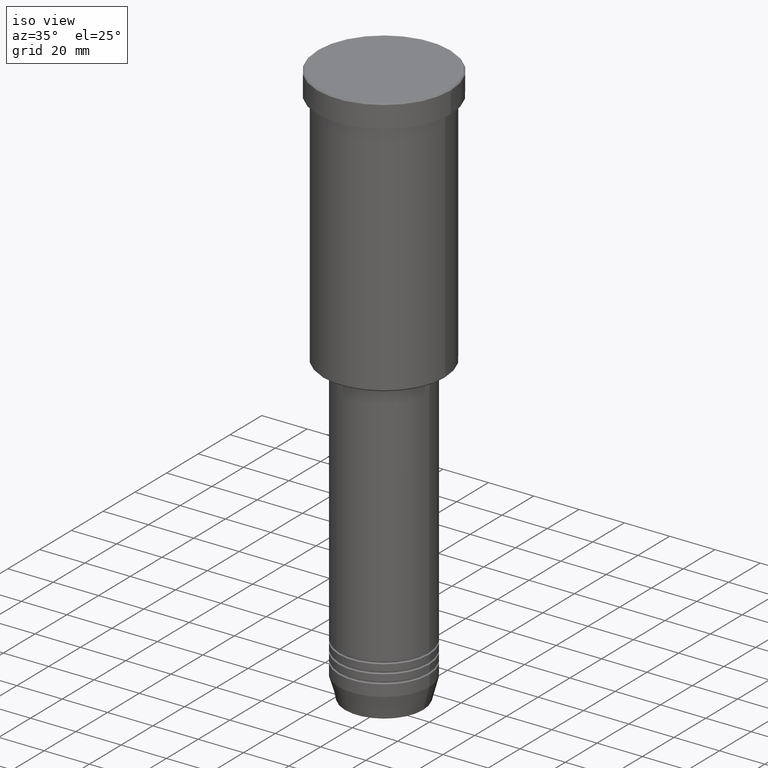
[diagram: clean part render]
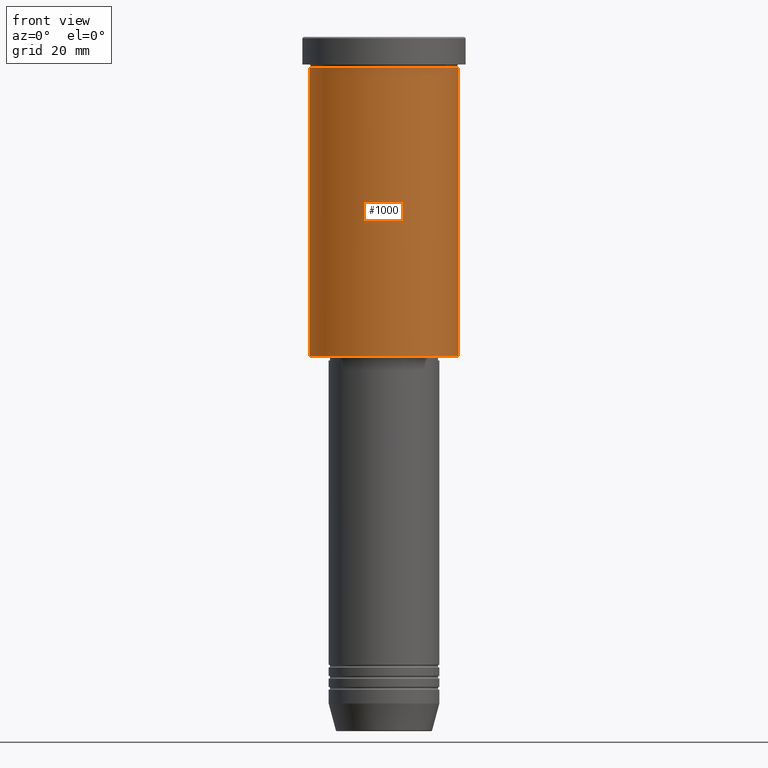
[diagram: tour spotlight — one face highlighted and labeled with its STEP entity id]
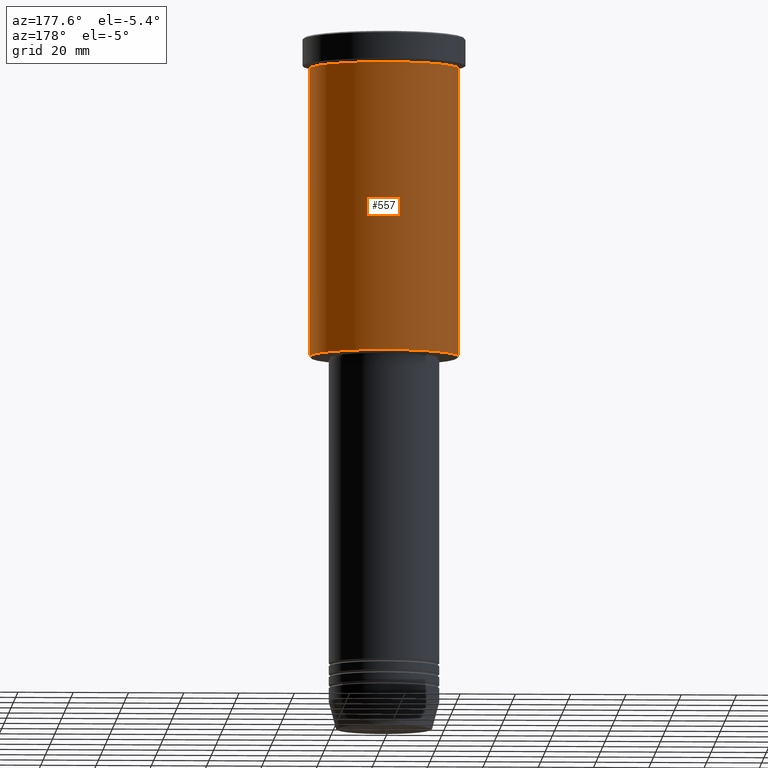
[diagram: tour spotlight — one face highlighted and labeled with its STEP entity id]
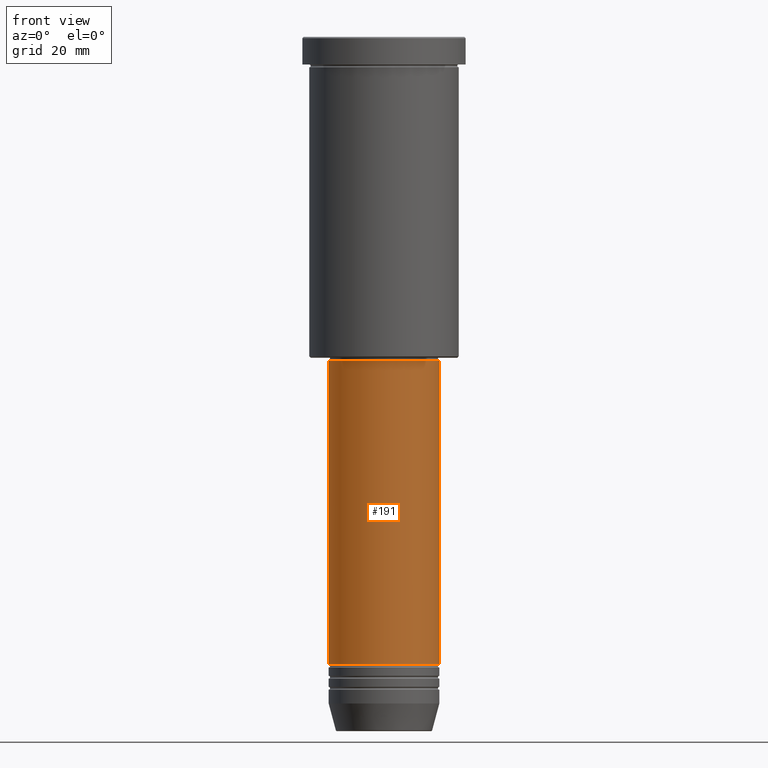
[diagram: tour spotlight — one face highlighted and labeled with its STEP entity id]
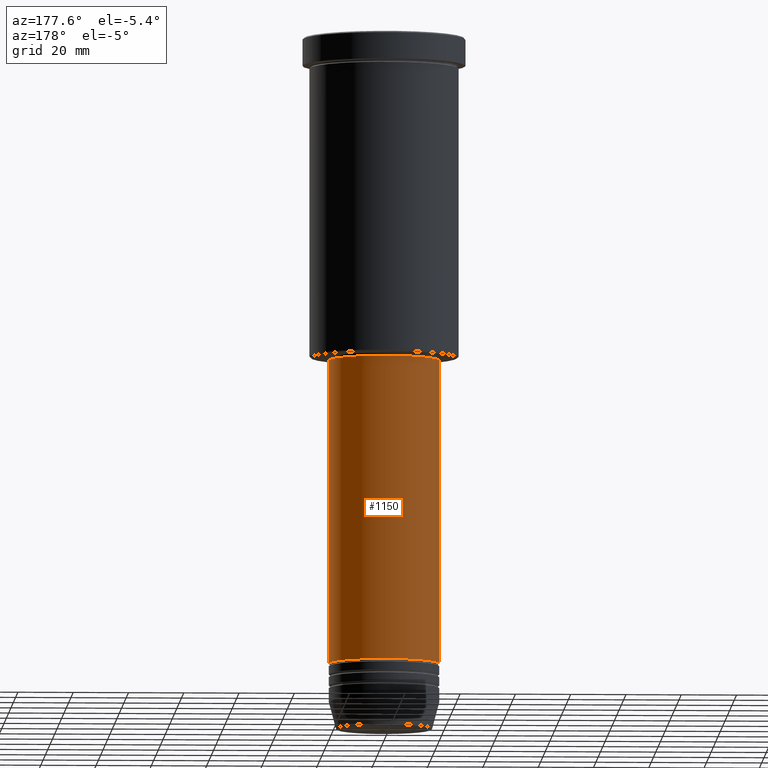
[diagram: tour spotlight — one face highlighted and labeled with its STEP entity id]
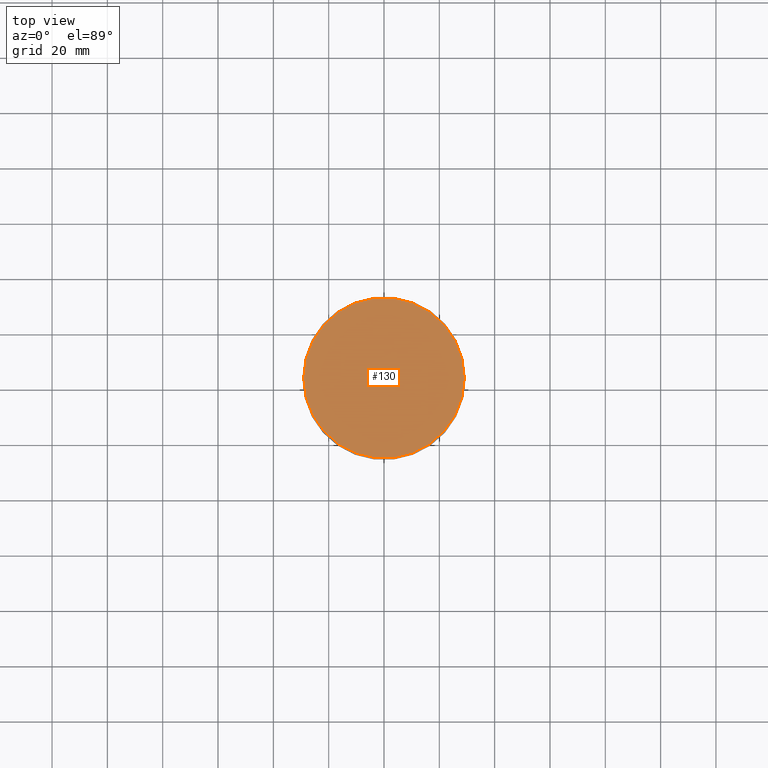
[diagram: tour spotlight — one face highlighted and labeled with its STEP entity id]
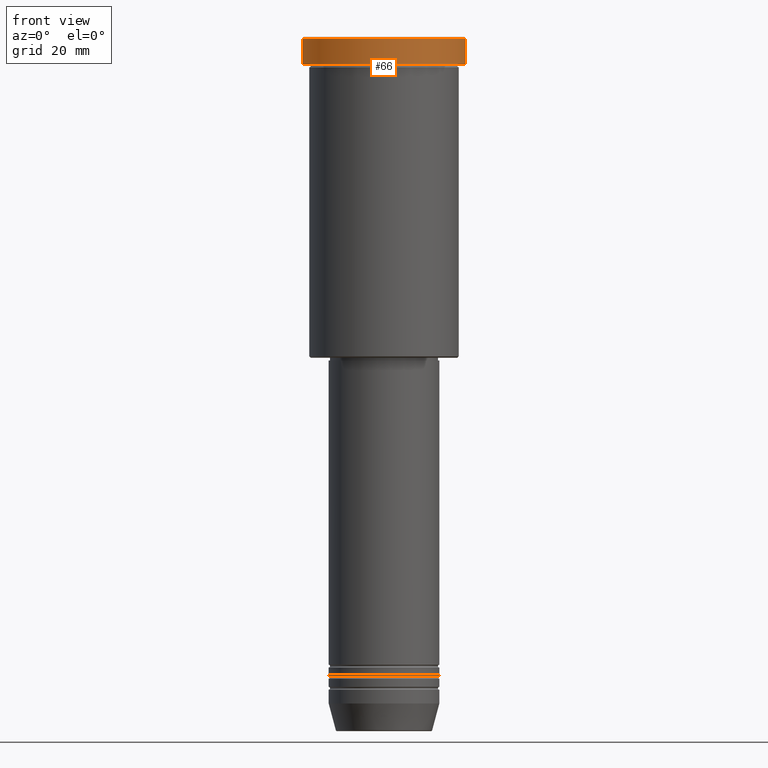
[diagram: tour spotlight — one face highlighted and labeled with its STEP entity id]
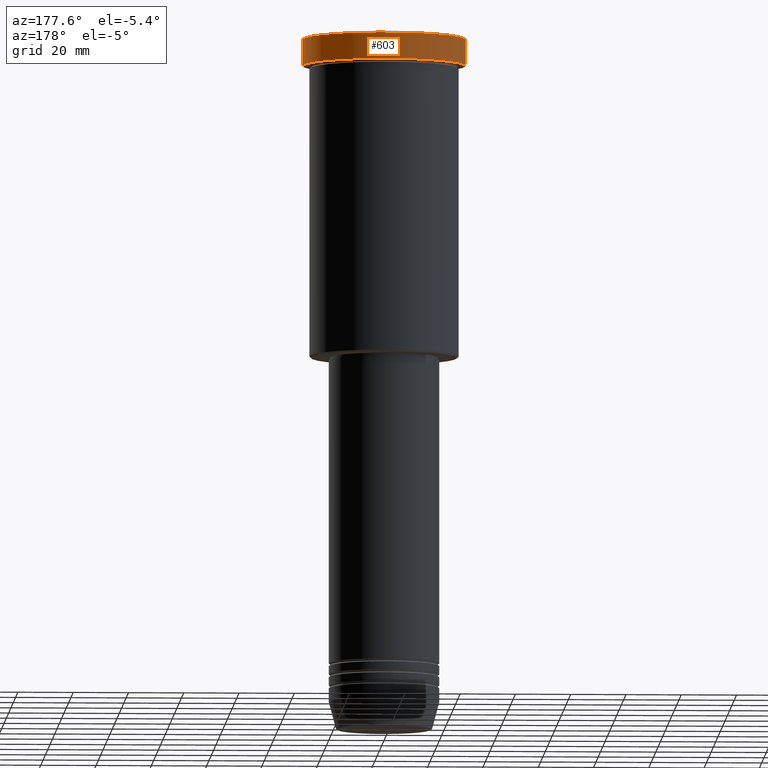
[diagram: tour spotlight — one face highlighted and labeled with its STEP entity id]
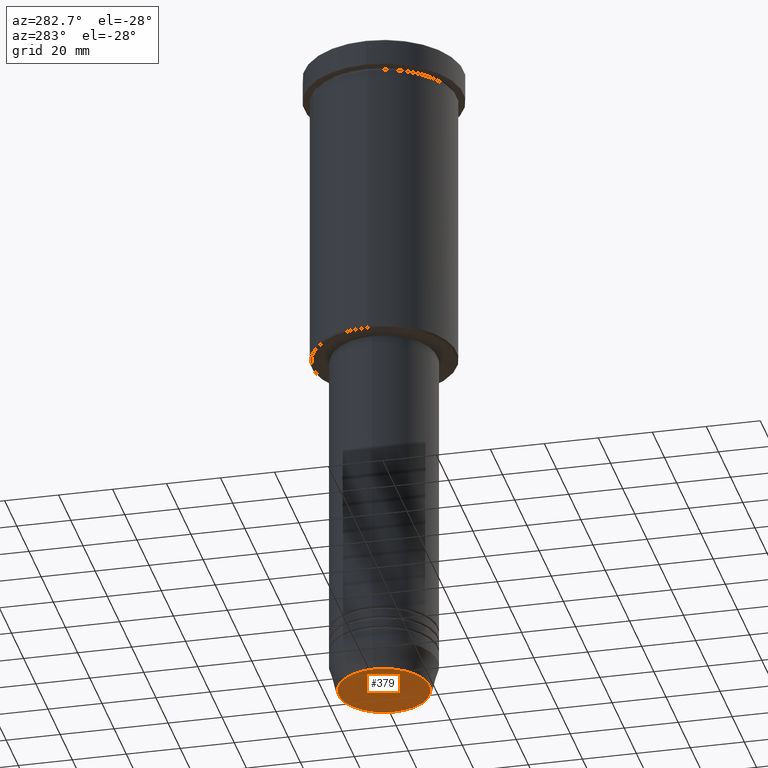
[diagram: tour spotlight — one face highlighted and labeled with its STEP entity id]
A machine part: a face-by-face anatomy tour. The part has 43 B-rep faces; the first image is the clean iso view, then the 8 largest visible faces are spotlighted one at a time (largest first), each with its STEP entity span.

Face 1 — front view, entity #1000. In plain terms, the highlighted cylindrical surface (partial cylindrical patch) has radius 27 mm, axis along (-0, -0, 1).
Definition (entity closure, byte-faithful):
#41 = CARTESIAN_POINT ( 'NONE',  ( 27.00000000000000355, 0.000000000000000000, 0.000000000000000000 ) ) ;
#71 = CIRCLE ( 'NONE', #127, 27.00000000000000355 ) ;
#94 = DIRECTION ( 'NONE',  ( -0.000000000000000000, -0.000000000000000000, 1.000000000000000000 ) ) ;
#127 = AXIS2_PLACEMENT_3D ( 'NONE', #998, #1112, #394 ) ;
#139 = VERTEX_POINT ( 'NONE', #487 ) ;
#140 = LINE ( 'NONE', #686, #901 ) ;
#162 = CYLINDRICAL_SURFACE ( 'NONE', #556, 27.00000000000000355 ) ;
#184 = ORIENTED_EDGE ( 'NONE', *, *, #399, .F. ) ;
#216 = AXIS2_PLACEMENT_3D ( 'NONE', #789, #1062, #865 ) ;
#238 = CARTESIAN_POINT ( 'NONE',  ( -27.00000000000000355, 3.306546357697854128E-15, -10.99999999999999289 ) ) ;
#272 = DIRECTION ( 'NONE',  ( 1.000000000000000000, 0.000000000000000000, 0.000000000000000000 ) ) ;
#310 = VERTEX_POINT ( 'NONE', #1050 ) ;
#315 = VECTOR ( 'NONE', #333, 1000.000000000000000 ) ;
#333 = DIRECTION ( 'NONE',  ( -0.000000000000000000, -0.000000000000000000, 1.000000000000000000 ) ) ;
#359 = FACE_OUTER_BOUND ( 'NONE', #1046, .T. ) ;
#365 = EDGE_CURVE ( 'NONE', #541, #310, #856, .T. ) ;
#394 = DIRECTION ( 'NONE',  ( -1.000000000000000000, 0.000000000000000000, 0.000000000000000000 ) ) ;
#399 = EDGE_CURVE ( 'NONE', #1183, #310, #955, .T. ) ;
#487 = CARTESIAN_POINT ( 'NONE',  ( -27.00000000000000355, 3.306546357697854128E-15, -115.4999999999999289 ) ) ;
#541 = VERTEX_POINT ( 'NONE', #909 ) ;
#556 = AXIS2_PLACEMENT_3D ( 'NONE', #902, #94, #272 ) ;
#686 = CARTESIAN_POINT ( 'NONE',  ( -27.00000000000000355, 3.306546357697854128E-15, 0.000000000000000000 ) ) ;
#789 = CARTESIAN_POINT ( 'NONE',  ( 0.000000000000000000, 0.000000000000000000, -10.99999999999999289 ) ) ;
#818 = EDGE_CURVE ( 'NONE', #139, #1183, #140, .T. ) ;
#856 = LINE ( 'NONE', #41, #315 ) ;
#865 = DIRECTION ( 'NONE',  ( 1.000000000000000000, 0.000000000000000000, 0.000000000000000000 ) ) ;
#901 = VECTOR ( 'NONE', #968, 1000.000000000000000 ) ;
#902 = CARTESIAN_POINT ( 'NONE',  ( 0.000000000000000000, 0.000000000000000000, 0.000000000000000000 ) ) ;
#909 = CARTESIAN_POINT ( 'NONE',  ( 27.00000000000000355, 0.000000000000000000, -115.4999999999999289 ) ) ;
#929 = ORIENTED_EDGE ( 'NONE', *, *, #1141, .T. ) ;
#937 = ORIENTED_EDGE ( 'NONE', *, *, #365, .T. ) ;
#955 = CIRCLE ( 'NONE', #216, 27.00000000000000355 ) ;
#956 = ORIENTED_EDGE ( 'NONE', *, *, #818, .F. ) ;
#968 = DIRECTION ( 'NONE',  ( -0.000000000000000000, -0.000000000000000000, 1.000000000000000000 ) ) ;
#998 = CARTESIAN_POINT ( 'NONE',  ( 0.000000000000000000, 0.000000000000000000, -115.4999999999999289 ) ) ;
#1000 = ADVANCED_FACE ( 'NONE', ( #359 ), #162, .T. ) ;
#1046 = EDGE_LOOP ( 'NONE', ( #956, #929, #937, #184 ) ) ;
#1050 = CARTESIAN_POINT ( 'NONE',  ( 27.00000000000000355, 0.000000000000000000, -10.99999999999999289 ) ) ;
#1062 = DIRECTION ( 'NONE',  ( -0.000000000000000000, -0.000000000000000000, 1.000000000000000000 ) ) ;
#1112 = DIRECTION ( 'NONE',  ( -0.000000000000000000, -0.000000000000000000, 1.000000000000000000 ) ) ;
#1141 = EDGE_CURVE ( 'NONE', #139, #541, #71, .T. ) ;
#1183 = VERTEX_POINT ( 'NONE', #238 ) ;

Face 2 — auxiliary view, entity #557. In plain terms, the highlighted cylindrical surface (partial cylindrical patch) has radius 27 mm, axis along (-0, -0, 1).
Definition (entity closure, byte-faithful):
#7 = CIRCLE ( 'NONE', #339, 27.00000000000000355 ) ;
#41 = CARTESIAN_POINT ( 'NONE',  ( 27.00000000000000355, 0.000000000000000000, 0.000000000000000000 ) ) ;
#48 = ORIENTED_EDGE ( 'NONE', *, *, #1070, .T. ) ;
#76 = DIRECTION ( 'NONE',  ( -0.000000000000000000, -0.000000000000000000, 1.000000000000000000 ) ) ;
#111 = DIRECTION ( 'NONE',  ( 1.000000000000000000, 0.000000000000000000, 0.000000000000000000 ) ) ;
#139 = VERTEX_POINT ( 'NONE', #487 ) ;
#140 = LINE ( 'NONE', #686, #901 ) ;
#238 = CARTESIAN_POINT ( 'NONE',  ( -27.00000000000000355, 3.306546357697854128E-15, -10.99999999999999289 ) ) ;
#310 = VERTEX_POINT ( 'NONE', #1050 ) ;
#315 = VECTOR ( 'NONE', #333, 1000.000000000000000 ) ;
#333 = DIRECTION ( 'NONE',  ( -0.000000000000000000, -0.000000000000000000, 1.000000000000000000 ) ) ;
#339 = AXIS2_PLACEMENT_3D ( 'NONE', #560, #1008, #1094 ) ;
#365 = EDGE_CURVE ( 'NONE', #541, #310, #856, .T. ) ;
#439 = ORIENTED_EDGE ( 'NONE', *, *, #1162, .F. ) ;
#487 = CARTESIAN_POINT ( 'NONE',  ( -27.00000000000000355, 3.306546357697854128E-15, -115.4999999999999289 ) ) ;
#529 = FACE_OUTER_BOUND ( 'NONE', #1179, .T. ) ;
#541 = VERTEX_POINT ( 'NONE', #909 ) ;
#557 = ADVANCED_FACE ( 'NONE', ( #529 ), #808, .T. ) ;
#560 = CARTESIAN_POINT ( 'NONE',  ( 0.000000000000000000, 0.000000000000000000, -115.4999999999999289 ) ) ;
#623 = CIRCLE ( 'NONE', #915, 27.00000000000000355 ) ;
#649 = ORIENTED_EDGE ( 'NONE', *, *, #365, .F. ) ;
#650 = DIRECTION ( 'NONE',  ( -0.000000000000000000, -0.000000000000000000, 1.000000000000000000 ) ) ;
#686 = CARTESIAN_POINT ( 'NONE',  ( -27.00000000000000355, 3.306546357697854128E-15, 0.000000000000000000 ) ) ;
#691 = DIRECTION ( 'NONE',  ( 1.000000000000000000, 0.000000000000000000, 0.000000000000000000 ) ) ;
#710 = CARTESIAN_POINT ( 'NONE',  ( 0.000000000000000000, 0.000000000000000000, 0.000000000000000000 ) ) ;
#808 = CYLINDRICAL_SURFACE ( 'NONE', #1171, 27.00000000000000355 ) ;
#818 = EDGE_CURVE ( 'NONE', #139, #1183, #140, .T. ) ;
#856 = LINE ( 'NONE', #41, #315 ) ;
#901 = VECTOR ( 'NONE', #968, 1000.000000000000000 ) ;
#909 = CARTESIAN_POINT ( 'NONE',  ( 27.00000000000000355, 0.000000000000000000, -115.4999999999999289 ) ) ;
#915 = AXIS2_PLACEMENT_3D ( 'NONE', #920, #650, #111 ) ;
#920 = CARTESIAN_POINT ( 'NONE',  ( 0.000000000000000000, 0.000000000000000000, -10.99999999999999289 ) ) ;
#968 = DIRECTION ( 'NONE',  ( -0.000000000000000000, -0.000000000000000000, 1.000000000000000000 ) ) ;
#1008 = DIRECTION ( 'NONE',  ( -0.000000000000000000, -0.000000000000000000, 1.000000000000000000 ) ) ;
#1050 = CARTESIAN_POINT ( 'NONE',  ( 27.00000000000000355, 0.000000000000000000, -10.99999999999999289 ) ) ;
#1070 = EDGE_CURVE ( 'NONE', #541, #139, #7, .T. ) ;
#1075 = ORIENTED_EDGE ( 'NONE', *, *, #818, .T. ) ;
#1094 = DIRECTION ( 'NONE',  ( -1.000000000000000000, 0.000000000000000000, 0.000000000000000000 ) ) ;
#1162 = EDGE_CURVE ( 'NONE', #310, #1183, #623, .T. ) ;
#1171 = AXIS2_PLACEMENT_3D ( 'NONE', #710, #76, #691 ) ;
#1179 = EDGE_LOOP ( 'NONE', ( #48, #1075, #439, #649 ) ) ;
#1183 = VERTEX_POINT ( 'NONE', #238 ) ;

Face 3 — front view, entity #191. In plain terms, the highlighted cylindrical surface (partial cylindrical patch) has radius 20 mm, axis along (-0, -0, 1).
Definition (entity closure, byte-faithful):
#13 = CARTESIAN_POINT ( 'NONE',  ( 19.99999999999999645, 0.000000000000000000, -117.0000000000000142 ) ) ;
#22 = DIRECTION ( 'NONE',  ( 1.000000000000000000, 0.000000000000000000, 0.000000000000000000 ) ) ;
#29 = CYLINDRICAL_SURFACE ( 'NONE', #387, 19.99999999999999645 ) ;
#50 = CARTESIAN_POINT ( 'NONE',  ( 20.00000000000000000, 0.000000000000000000, -226.9999999999998863 ) ) ;
#92 = ORIENTED_EDGE ( 'NONE', *, *, #626, .F. ) ;
#146 = CIRCLE ( 'NONE', #1036, 20.00000000000000000 ) ;
#147 = ORIENTED_EDGE ( 'NONE', *, *, #941, .F. ) ;
#154 = VERTEX_POINT ( 'NONE', #13 ) ;
#169 = CARTESIAN_POINT ( 'NONE',  ( 0.000000000000000000, 0.000000000000000000, -117.0000000000000142 ) ) ;
#191 = ADVANCED_FACE ( 'NONE', ( #558 ), #29, .T. ) ;
#208 = CARTESIAN_POINT ( 'NONE',  ( -19.99999999999999645, 2.449293598294706119E-15, 0.000000000000000000 ) ) ;
#248 = DIRECTION ( 'NONE',  ( 1.000000000000000000, 0.000000000000000000, 0.000000000000000000 ) ) ;
#260 = VERTEX_POINT ( 'NONE', #50 ) ;
#265 = ORIENTED_EDGE ( 'NONE', *, *, #1159, .T. ) ;
#286 = DIRECTION ( 'NONE',  ( -0.000000000000000000, -0.000000000000000000, 1.000000000000000000 ) ) ;
#294 = VECTOR ( 'NONE', #548, 1000.000000000000000 ) ;
#342 = EDGE_LOOP ( 'NONE', ( #92, #567, #265, #147 ) ) ;
#354 = CIRCLE ( 'NONE', #392, 19.99999999999999645 ) ;
#363 = CARTESIAN_POINT ( 'NONE',  ( 0.000000000000000000, 0.000000000000000000, -226.9999999999998863 ) ) ;
#387 = AXIS2_PLACEMENT_3D ( 'NONE', #391, #844, #22 ) ;
#391 = CARTESIAN_POINT ( 'NONE',  ( 0.000000000000000000, 0.000000000000000000, 0.000000000000000000 ) ) ;
#392 = AXIS2_PLACEMENT_3D ( 'NONE', #169, #990, #248 ) ;
#472 = LINE ( 'NONE', #1098, #1039 ) ;
#502 = VERTEX_POINT ( 'NONE', #715 ) ;
#548 = DIRECTION ( 'NONE',  ( -0.000000000000000000, -0.000000000000000000, 1.000000000000000000 ) ) ;
#558 = FACE_OUTER_BOUND ( 'NONE', #342, .T. ) ;
#567 = ORIENTED_EDGE ( 'NONE', *, *, #1020, .T. ) ;
#626 = EDGE_CURVE ( 'NONE', #502, #680, #930, .T. ) ;
#628 = DIRECTION ( 'NONE',  ( 1.000000000000000000, 0.000000000000000000, 0.000000000000000000 ) ) ;
#680 = VERTEX_POINT ( 'NONE', #1026 ) ;
#714 = DIRECTION ( 'NONE',  ( -0.000000000000000000, -0.000000000000000000, 1.000000000000000000 ) ) ;
#715 = CARTESIAN_POINT ( 'NONE',  ( -20.00000000000000000, 2.449293598294706513E-15, -226.9999999999998863 ) ) ;
#844 = DIRECTION ( 'NONE',  ( -0.000000000000000000, -0.000000000000000000, 1.000000000000000000 ) ) ;
#930 = LINE ( 'NONE', #208, #294 ) ;
#941 = EDGE_CURVE ( 'NONE', #680, #154, #354, .T. ) ;
#990 = DIRECTION ( 'NONE',  ( -0.000000000000000000, -0.000000000000000000, 1.000000000000000000 ) ) ;
#1020 = EDGE_CURVE ( 'NONE', #502, #260, #146, .T. ) ;
#1026 = CARTESIAN_POINT ( 'NONE',  ( -19.99999999999999645, 2.449293598294706119E-15, -117.0000000000000142 ) ) ;
#1036 = AXIS2_PLACEMENT_3D ( 'NONE', #363, #714, #628 ) ;
#1039 = VECTOR ( 'NONE', #286, 1000.000000000000000 ) ;
#1098 = CARTESIAN_POINT ( 'NONE',  ( 19.99999999999999645, 0.000000000000000000, 0.000000000000000000 ) ) ;
#1159 = EDGE_CURVE ( 'NONE', #260, #154, #472, .T. ) ;

Face 4 — auxiliary view, entity #1150. In plain terms, the highlighted cylindrical surface (partial cylindrical patch) has radius 20 mm, axis along (-0, -0, 1).
Definition (entity closure, byte-faithful):
#13 = CARTESIAN_POINT ( 'NONE',  ( 19.99999999999999645, 0.000000000000000000, -117.0000000000000142 ) ) ;
#20 = CARTESIAN_POINT ( 'NONE',  ( 0.000000000000000000, 0.000000000000000000, 0.000000000000000000 ) ) ;
#47 = AXIS2_PLACEMENT_3D ( 'NONE', #202, #282, #99 ) ;
#50 = CARTESIAN_POINT ( 'NONE',  ( 20.00000000000000000, 0.000000000000000000, -226.9999999999998863 ) ) ;
#99 = DIRECTION ( 'NONE',  ( 1.000000000000000000, 0.000000000000000000, 0.000000000000000000 ) ) ;
#123 = CIRCLE ( 'NONE', #500, 20.00000000000000000 ) ;
#136 = ORIENTED_EDGE ( 'NONE', *, *, #1060, .F. ) ;
#154 = VERTEX_POINT ( 'NONE', #13 ) ;
#190 = DIRECTION ( 'NONE',  ( -0.000000000000000000, -0.000000000000000000, 1.000000000000000000 ) ) ;
#202 = CARTESIAN_POINT ( 'NONE',  ( 0.000000000000000000, 0.000000000000000000, -117.0000000000000142 ) ) ;
#208 = CARTESIAN_POINT ( 'NONE',  ( -19.99999999999999645, 2.449293598294706119E-15, 0.000000000000000000 ) ) ;
#242 = DIRECTION ( 'NONE',  ( -0.000000000000000000, -0.000000000000000000, 1.000000000000000000 ) ) ;
#260 = VERTEX_POINT ( 'NONE', #50 ) ;
#282 = DIRECTION ( 'NONE',  ( -0.000000000000000000, -0.000000000000000000, 1.000000000000000000 ) ) ;
#286 = DIRECTION ( 'NONE',  ( -0.000000000000000000, -0.000000000000000000, 1.000000000000000000 ) ) ;
#294 = VECTOR ( 'NONE', #548, 1000.000000000000000 ) ;
#322 = EDGE_CURVE ( 'NONE', #260, #502, #123, .T. ) ;
#397 = EDGE_LOOP ( 'NONE', ( #475, #893, #136, #989 ) ) ;
#461 = AXIS2_PLACEMENT_3D ( 'NONE', #20, #190, #553 ) ;
#472 = LINE ( 'NONE', #1098, #1039 ) ;
#475 = ORIENTED_EDGE ( 'NONE', *, *, #322, .T. ) ;
#500 = AXIS2_PLACEMENT_3D ( 'NONE', #960, #242, #510 ) ;
#502 = VERTEX_POINT ( 'NONE', #715 ) ;
#510 = DIRECTION ( 'NONE',  ( 1.000000000000000000, 0.000000000000000000, 0.000000000000000000 ) ) ;
#548 = DIRECTION ( 'NONE',  ( -0.000000000000000000, -0.000000000000000000, 1.000000000000000000 ) ) ;
#553 = DIRECTION ( 'NONE',  ( 1.000000000000000000, 0.000000000000000000, 0.000000000000000000 ) ) ;
#626 = EDGE_CURVE ( 'NONE', #502, #680, #930, .T. ) ;
#680 = VERTEX_POINT ( 'NONE', #1026 ) ;
#715 = CARTESIAN_POINT ( 'NONE',  ( -20.00000000000000000, 2.449293598294706513E-15, -226.9999999999998863 ) ) ;
#722 = FACE_OUTER_BOUND ( 'NONE', #397, .T. ) ;
#893 = ORIENTED_EDGE ( 'NONE', *, *, #626, .T. ) ;
#919 = CIRCLE ( 'NONE', #47, 19.99999999999999645 ) ;
#930 = LINE ( 'NONE', #208, #294 ) ;
#960 = CARTESIAN_POINT ( 'NONE',  ( 0.000000000000000000, 0.000000000000000000, -226.9999999999998863 ) ) ;
#989 = ORIENTED_EDGE ( 'NONE', *, *, #1159, .F. ) ;
#1003 = CYLINDRICAL_SURFACE ( 'NONE', #461, 19.99999999999999645 ) ;
#1026 = CARTESIAN_POINT ( 'NONE',  ( -19.99999999999999645, 2.449293598294706119E-15, -117.0000000000000142 ) ) ;
#1039 = VECTOR ( 'NONE', #286, 1000.000000000000000 ) ;
#1060 = EDGE_CURVE ( 'NONE', #154, #680, #919, .T. ) ;
#1098 = CARTESIAN_POINT ( 'NONE',  ( 19.99999999999999645, 0.000000000000000000, 0.000000000000000000 ) ) ;
#1150 = ADVANCED_FACE ( 'NONE', ( #722 ), #1003, .T. ) ;
#1159 = EDGE_CURVE ( 'NONE', #260, #154, #472, .T. ) ;

Face 5 — top view, entity #130. In plain terms, the highlighted planar face has unit normal (0, -0, 1).
Definition (entity closure, byte-faithful):
#23 = AXIS2_PLACEMENT_3D ( 'NONE', #775, #413, #946 ) ;
#42 = AXIS2_PLACEMENT_3D ( 'NONE', #396, #566, #466 ) ;
#130 = ADVANCED_FACE ( 'NONE', ( #642 ), #295, .T. ) ;
#150 = ORIENTED_EDGE ( 'NONE', *, *, #168, .T. ) ;
#168 = EDGE_CURVE ( 'NONE', #866, #1054, #1126, .T. ) ;
#232 = ORIENTED_EDGE ( 'NONE', *, *, #303, .T. ) ;
#295 = PLANE ( 'NONE',  #42 ) ;
#303 = EDGE_CURVE ( 'NONE', #1054, #866, #568, .T. ) ;
#396 = CARTESIAN_POINT ( 'NONE',  ( 0.000000000000000000, 0.000000000000000000, 0.000000000000000000 ) ) ;
#408 = AXIS2_PLACEMENT_3D ( 'NONE', #923, #470, #849 ) ;
#413 = DIRECTION ( 'NONE',  ( -0.000000000000000000, -0.000000000000000000, 1.000000000000000000 ) ) ;
#466 = DIRECTION ( 'NONE',  ( 1.000000000000000000, 0.000000000000000000, 0.000000000000000000 ) ) ;
#470 = DIRECTION ( 'NONE',  ( -0.000000000000000000, -0.000000000000000000, 1.000000000000000000 ) ) ;
#566 = DIRECTION ( 'NONE',  ( 0.000000000000000000, -0.000000000000000000, 1.000000000000000000 ) ) ;
#568 = CIRCLE ( 'NONE', #23, 28.99999999999997158 ) ;
#642 = FACE_OUTER_BOUND ( 'NONE', #942, .T. ) ;
#732 = CARTESIAN_POINT ( 'NONE',  ( 28.99999999999997158, 3.582091887506006239E-15, 0.000000000000000000 ) ) ;
#775 = CARTESIAN_POINT ( 'NONE',  ( 0.000000000000000000, 0.000000000000000000, 0.000000000000000000 ) ) ;
#849 = DIRECTION ( 'NONE',  ( 1.000000000000000000, 0.000000000000000000, 0.000000000000000000 ) ) ;
#866 = VERTEX_POINT ( 'NONE', #1038 ) ;
#923 = CARTESIAN_POINT ( 'NONE',  ( 0.000000000000000000, 0.000000000000000000, 0.000000000000000000 ) ) ;
#942 = EDGE_LOOP ( 'NONE', ( #150, #232 ) ) ;
#946 = DIRECTION ( 'NONE',  ( 1.000000000000000000, 0.000000000000000000, 0.000000000000000000 ) ) ;
#1038 = CARTESIAN_POINT ( 'NONE',  ( -28.99999999999997158, 0.000000000000000000, 0.000000000000000000 ) ) ;
#1054 = VERTEX_POINT ( 'NONE', #732 ) ;
#1126 = CIRCLE ( 'NONE', #408, 28.99999999999997158 ) ;

Face 6 — front view, entity #66. In plain terms, the highlighted cylindrical surface (partial cylindrical patch) has radius 29.5 mm, axis along (-0, -0, 1).
Definition (entity closure, byte-faithful):
#6 = CARTESIAN_POINT ( 'NONE',  ( 0.000000000000000000, 0.000000000000000000, 0.000000000000000000 ) ) ;
#17 = DIRECTION ( 'NONE',  ( -0.000000000000000000, -0.000000000000000000, 1.000000000000000000 ) ) ;
#66 = ADVANCED_FACE ( 'NONE', ( #891 ), #802, .T. ) ;
#107 = AXIS2_PLACEMENT_3D ( 'NONE', #671, #148, #758 ) ;
#124 = AXIS2_PLACEMENT_3D ( 'NONE', #842, #300, #555 ) ;
#148 = DIRECTION ( 'NONE',  ( -0.000000000000000000, -0.000000000000000000, 1.000000000000000000 ) ) ;
#194 = EDGE_LOOP ( 'NONE', ( #362, #731, #569, #1066 ) ) ;
#214 = CARTESIAN_POINT ( 'NONE',  ( 29.50000000000000000, 0.000000000000000000, -0.5000000000000559552 ) ) ;
#237 = VECTOR ( 'NONE', #17, 1000.000000000000000 ) ;
#279 = DIRECTION ( 'NONE',  ( 1.000000000000000000, 0.000000000000000000, 0.000000000000000000 ) ) ;
#292 = AXIS2_PLACEMENT_3D ( 'NONE', #6, #978, #279 ) ;
#300 = DIRECTION ( 'NONE',  ( 0.000000000000000000, 0.000000000000000000, -1.000000000000000000 ) ) ;
#311 = CARTESIAN_POINT ( 'NONE',  ( -29.50000000000000000, 3.612708057484691604E-15, -0.5000000000000559552 ) ) ;
#362 = ORIENTED_EDGE ( 'NONE', *, *, #655, .F. ) ;
#406 = LINE ( 'NONE', #957, #464 ) ;
#410 = VERTEX_POINT ( 'NONE', #1170 ) ;
#428 = VERTEX_POINT ( 'NONE', #1065 ) ;
#464 = VECTOR ( 'NONE', #683, 1000.000000000000000 ) ;
#555 = DIRECTION ( 'NONE',  ( 1.000000000000000000, 0.000000000000000000, 0.000000000000000000 ) ) ;
#569 = ORIENTED_EDGE ( 'NONE', *, *, #781, .T. ) ;
#571 = CIRCLE ( 'NONE', #124, 29.50000000000000000 ) ;
#601 = EDGE_CURVE ( 'NONE', #682, #821, #571, .T. ) ;
#610 = CIRCLE ( 'NONE', #107, 29.50000000000000000 ) ;
#641 = CARTESIAN_POINT ( 'NONE',  ( -29.50000000000000000, 3.612708057484691604E-15, 0.000000000000000000 ) ) ;
#647 = LINE ( 'NONE', #641, #237 ) ;
#655 = EDGE_CURVE ( 'NONE', #410, #821, #647, .T. ) ;
#671 = CARTESIAN_POINT ( 'NONE',  ( 0.000000000000000000, 0.000000000000000000, -9.999999999999992895 ) ) ;
#682 = VERTEX_POINT ( 'NONE', #214 ) ;
#683 = DIRECTION ( 'NONE',  ( -0.000000000000000000, -0.000000000000000000, 1.000000000000000000 ) ) ;
#731 = ORIENTED_EDGE ( 'NONE', *, *, #786, .T. ) ;
#758 = DIRECTION ( 'NONE',  ( 1.000000000000000000, 0.000000000000000000, 0.000000000000000000 ) ) ;
#781 = EDGE_CURVE ( 'NONE', #428, #682, #406, .T. ) ;
#786 = EDGE_CURVE ( 'NONE', #410, #428, #610, .T. ) ;
#802 = CYLINDRICAL_SURFACE ( 'NONE', #292, 29.50000000000000000 ) ;
#821 = VERTEX_POINT ( 'NONE', #311 ) ;
#842 = CARTESIAN_POINT ( 'NONE',  ( 0.000000000000000000, 0.000000000000000000, -0.5000000000000559552 ) ) ;
#891 = FACE_OUTER_BOUND ( 'NONE', #194, .T. ) ;
#957 = CARTESIAN_POINT ( 'NONE',  ( 29.50000000000000000, 0.000000000000000000, 0.000000000000000000 ) ) ;
#978 = DIRECTION ( 'NONE',  ( -0.000000000000000000, -0.000000000000000000, 1.000000000000000000 ) ) ;
#1065 = CARTESIAN_POINT ( 'NONE',  ( 29.50000000000000000, 0.000000000000000000, -9.999999999999992895 ) ) ;
#1066 = ORIENTED_EDGE ( 'NONE', *, *, #601, .T. ) ;
#1170 = CARTESIAN_POINT ( 'NONE',  ( -29.50000000000000000, 3.612708057484691604E-15, -9.999999999999992895 ) ) ;

Face 7 — auxiliary view, entity #603. In plain terms, the highlighted cylindrical surface (partial cylindrical patch) has radius 29.5 mm, axis along (-0, -0, 1).
Definition (entity closure, byte-faithful):
#11 = CARTESIAN_POINT ( 'NONE',  ( 0.000000000000000000, 0.000000000000000000, -9.999999999999992895 ) ) ;
#14 = ORIENTED_EDGE ( 'NONE', *, *, #724, .T. ) ;
#17 = DIRECTION ( 'NONE',  ( -0.000000000000000000, -0.000000000000000000, 1.000000000000000000 ) ) ;
#166 = EDGE_CURVE ( 'NONE', #821, #682, #861, .T. ) ;
#204 = DIRECTION ( 'NONE',  ( 1.000000000000000000, 0.000000000000000000, 0.000000000000000000 ) ) ;
#214 = CARTESIAN_POINT ( 'NONE',  ( 29.50000000000000000, 0.000000000000000000, -0.5000000000000559552 ) ) ;
#237 = VECTOR ( 'NONE', #17, 1000.000000000000000 ) ;
#311 = CARTESIAN_POINT ( 'NONE',  ( -29.50000000000000000, 3.612708057484691604E-15, -0.5000000000000559552 ) ) ;
#378 = DIRECTION ( 'NONE',  ( -0.000000000000000000, -0.000000000000000000, 1.000000000000000000 ) ) ;
#380 = DIRECTION ( 'NONE',  ( 0.000000000000000000, 0.000000000000000000, -1.000000000000000000 ) ) ;
#406 = LINE ( 'NONE', #957, #464 ) ;
#410 = VERTEX_POINT ( 'NONE', #1170 ) ;
#428 = VERTEX_POINT ( 'NONE', #1065 ) ;
#457 = ORIENTED_EDGE ( 'NONE', *, *, #781, .F. ) ;
#464 = VECTOR ( 'NONE', #683, 1000.000000000000000 ) ;
#561 = DIRECTION ( 'NONE',  ( 1.000000000000000000, 0.000000000000000000, 0.000000000000000000 ) ) ;
#565 = CARTESIAN_POINT ( 'NONE',  ( 0.000000000000000000, 0.000000000000000000, 0.000000000000000000 ) ) ;
#591 = AXIS2_PLACEMENT_3D ( 'NONE', #565, #922, #1021 ) ;
#598 = EDGE_LOOP ( 'NONE', ( #14, #1119, #845, #457 ) ) ;
#603 = ADVANCED_FACE ( 'NONE', ( #651 ), #1009, .T. ) ;
#641 = CARTESIAN_POINT ( 'NONE',  ( -29.50000000000000000, 3.612708057484691604E-15, 0.000000000000000000 ) ) ;
#647 = LINE ( 'NONE', #641, #237 ) ;
#651 = FACE_OUTER_BOUND ( 'NONE', #598, .T. ) ;
#655 = EDGE_CURVE ( 'NONE', #410, #821, #647, .T. ) ;
#682 = VERTEX_POINT ( 'NONE', #214 ) ;
#683 = DIRECTION ( 'NONE',  ( -0.000000000000000000, -0.000000000000000000, 1.000000000000000000 ) ) ;
#724 = EDGE_CURVE ( 'NONE', #428, #410, #1072, .T. ) ;
#781 = EDGE_CURVE ( 'NONE', #428, #682, #406, .T. ) ;
#821 = VERTEX_POINT ( 'NONE', #311 ) ;
#845 = ORIENTED_EDGE ( 'NONE', *, *, #166, .T. ) ;
#861 = CIRCLE ( 'NONE', #1108, 29.50000000000000000 ) ;
#922 = DIRECTION ( 'NONE',  ( -0.000000000000000000, -0.000000000000000000, 1.000000000000000000 ) ) ;
#957 = CARTESIAN_POINT ( 'NONE',  ( 29.50000000000000000, 0.000000000000000000, 0.000000000000000000 ) ) ;
#1009 = CYLINDRICAL_SURFACE ( 'NONE', #591, 29.50000000000000000 ) ;
#1021 = DIRECTION ( 'NONE',  ( 1.000000000000000000, 0.000000000000000000, 0.000000000000000000 ) ) ;
#1053 = AXIS2_PLACEMENT_3D ( 'NONE', #11, #378, #561 ) ;
#1065 = CARTESIAN_POINT ( 'NONE',  ( 29.50000000000000000, 0.000000000000000000, -9.999999999999992895 ) ) ;
#1072 = CIRCLE ( 'NONE', #1053, 29.50000000000000000 ) ;
#1101 = CARTESIAN_POINT ( 'NONE',  ( 0.000000000000000000, 0.000000000000000000, -0.5000000000000559552 ) ) ;
#1108 = AXIS2_PLACEMENT_3D ( 'NONE', #1101, #380, #204 ) ;
#1119 = ORIENTED_EDGE ( 'NONE', *, *, #655, .T. ) ;
#1170 = CARTESIAN_POINT ( 'NONE',  ( -29.50000000000000000, 3.612708057484691604E-15, -9.999999999999992895 ) ) ;

Face 8 — auxiliary view, entity #379. In plain terms, the highlighted planar face has unit normal (0, -0, 1).
Definition (entity closure, byte-faithful):
#36 = ORIENTED_EDGE ( 'NONE', *, *, #52, .T. ) ;
#52 = EDGE_CURVE ( 'NONE', #619, #587, #217, .T. ) ;
#61 = PLANE ( 'NONE',  #737 ) ;
#110 = EDGE_CURVE ( 'NONE', #587, #619, #971, .T. ) ;
#188 = DIRECTION ( 'NONE',  ( 1.000000000000000000, 0.000000000000000000, 0.000000000000000000 ) ) ;
#217 = CIRCLE ( 'NONE', #877, 16.93684458169928675 ) ;
#379 = ADVANCED_FACE ( 'NONE', ( #684 ), #61, .F. ) ;
#442 = CARTESIAN_POINT ( 'NONE',  ( 0.000000000000000000, 0.000000000000000000, -251.0000000000000000 ) ) ;
#545 = CARTESIAN_POINT ( 'NONE',  ( 0.000000000000000000, 0.000000000000000000, -251.0000000000000000 ) ) ;
#587 = VERTEX_POINT ( 'NONE', #617 ) ;
#597 = DIRECTION ( 'NONE',  ( 1.000000000000000000, 0.000000000000000000, 0.000000000000000000 ) ) ;
#617 = CARTESIAN_POINT ( 'NONE',  ( 16.93684458169928675, 0.000000000000000000, -251.0000000000000000 ) ) ;
#618 = DIRECTION ( 'NONE',  ( 0.000000000000000000, 0.000000000000000000, -1.000000000000000000 ) ) ;
#619 = VERTEX_POINT ( 'NONE', #725 ) ;
#684 = FACE_OUTER_BOUND ( 'NONE', #784, .T. ) ;
#697 = DIRECTION ( 'NONE',  ( 1.000000000000000000, 0.000000000000000000, 0.000000000000000000 ) ) ;
#725 = CARTESIAN_POINT ( 'NONE',  ( -16.93684458169928675, 2.103738199747889592E-15, -251.0000000000000000 ) ) ;
#737 = AXIS2_PLACEMENT_3D ( 'NONE', #763, #1134, #597 ) ;
#763 = CARTESIAN_POINT ( 'NONE',  ( 0.000000000000000000, 0.000000000000000000, -251.0000000000000000 ) ) ;
#784 = EDGE_LOOP ( 'NONE', ( #1043, #36 ) ) ;
#877 = AXIS2_PLACEMENT_3D ( 'NONE', #545, #618, #188 ) ;
#971 = CIRCLE ( 'NONE', #1106, 16.93684458169928675 ) ;
#1043 = ORIENTED_EDGE ( 'NONE', *, *, #110, .T. ) ;
#1106 = AXIS2_PLACEMENT_3D ( 'NONE', #442, #1177, #697 ) ;
#1134 = DIRECTION ( 'NONE',  ( 0.000000000000000000, -0.000000000000000000, 1.000000000000000000 ) ) ;
#1177 = DIRECTION ( 'NONE',  ( 0.000000000000000000, 0.000000000000000000, -1.000000000000000000 ) ) ;